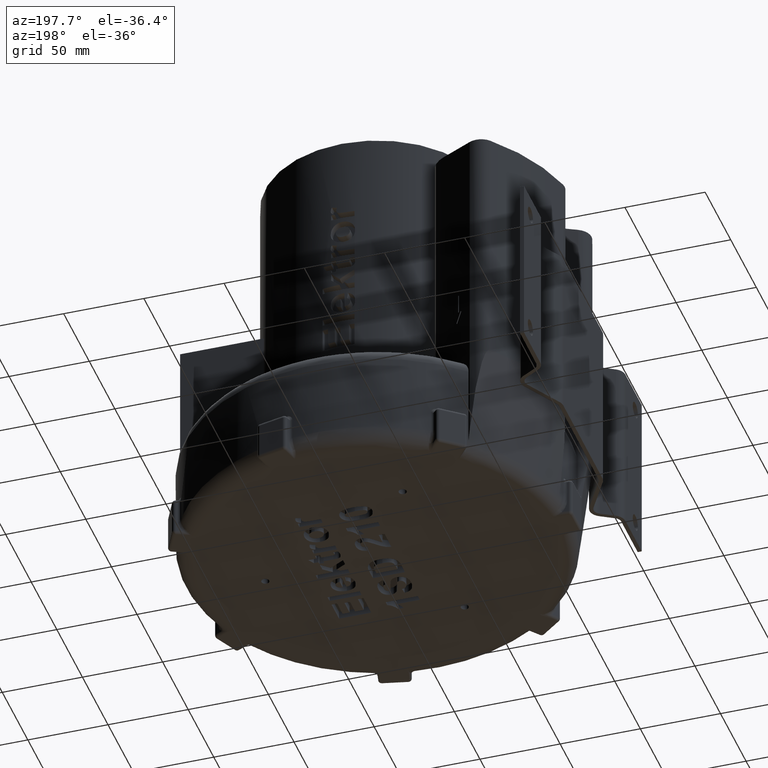
[diagram: clean part render]
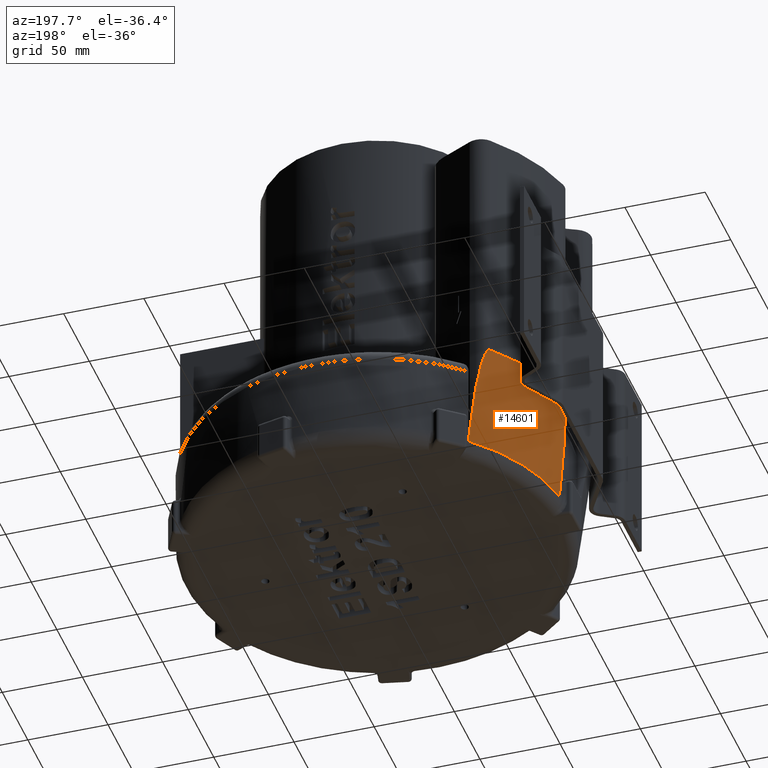
[diagram: same view with one face highlighted and labeled with its STEP entity id]
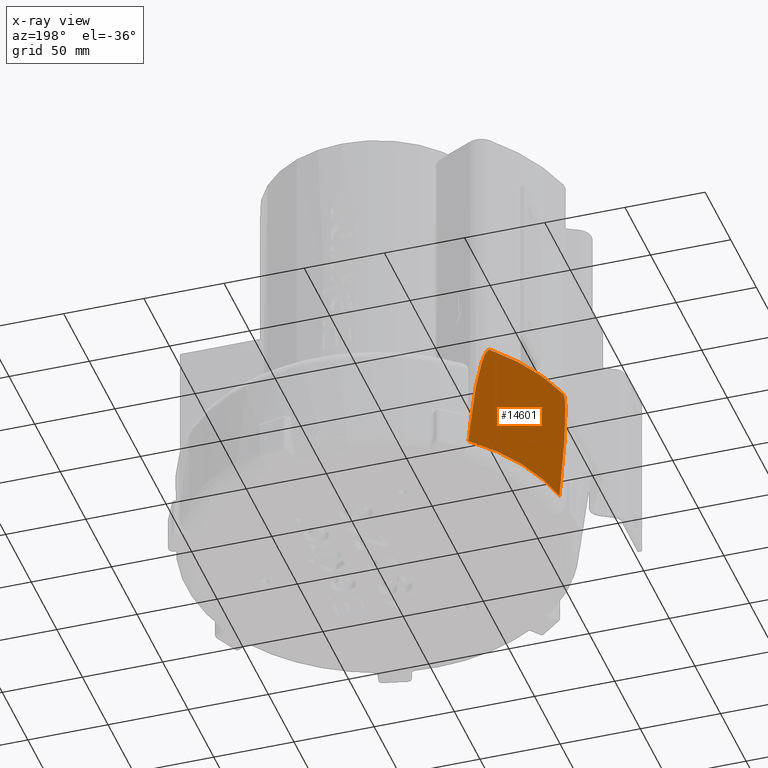
[diagram: x-ray of the same camera — body ghosted, the highlighted face saturated]
A machine part, auxiliary view. The second image highlights one B-rep face of the part: STEP entity #14601.
The next image is the same camera in x-ray: the body ghosted, the highlighted face saturated — about 0% of this face is hidden behind the body in this view.
In plain terms, the highlighted conical surface has half-angle 7 deg.
Its self-contained STEP definition (entity closure, byte-faithful):
#6118=CARTESIAN_POINT('',(-118.73004987260782,16.890576579050482,-63.218693434051481));
#6119=VERTEX_POINT('',#6118);
#6127=CARTESIAN_POINT('',(-83.986114261722307,85.606360342801821,-63.218693434051467));
#6128=VERTEX_POINT('',#6127);
#6129=CARTESIAN_POINT('',(0.0,0.0,-63.218693434051467));
#6130=DIRECTION('',(0.0,0.0,1.0));
#6131=DIRECTION('',(-1.0,0.0,0.0));
#6132=AXIS2_PLACEMENT_3D('',#6129,#6130,#6131);
#6133=CIRCLE('',#6132,119.92546151641321);
#6134=EDGE_CURVE('',#6128,#6119,#6133,.T.);
#14502=CARTESIAN_POINT('',(0.0,0.0,-17.60934671702573));
#14503=DIRECTION('',(0.0,0.0,1.0));
#14504=DIRECTION('',(-1.0,0.0,0.0));
#14505=AXIS2_PLACEMENT_3D('',#14502,#14503,#14504);
#14506=CONICAL_SURFACE('',#14505,125.52558512613152,6.999999999999961);
#14507=CARTESIAN_POINT('',(-84.815140395372865,86.025530859816186,-56.05030446855195));
#14508=VERTEX_POINT('',#14507);
#14509=CARTESIAN_POINT('',(-83.986114261722307,85.606360342801821,-63.218693434051467));
#14510=CARTESIAN_POINT('',(-84.399111774716019,85.815179310045863,-59.649097139021514));
#14511=CARTESIAN_POINT('',(-84.815140395372865,86.025530859816186,-56.05030446855195));
#14519=(BOUNDED_CURVE()B_SPLINE_CURVE(2,(#14509,#14510,#14511),.UNSPECIFIED.,.F.,.U.)B_SPLINE_CURVE_WITH_KNOTS((3,3),(0.0,0.756366785744703),.UNSPECIFIED.)CURVE()GEOMETRIC_REPRESENTATION_ITEM()RATIONAL_B_SPLINE_CURVE((1.0,1.000090507874745,1.000166129674321))REPRESENTATION_ITEM(''));
#14520=EDGE_CURVE('',#6128,#14508,#14519,.T.);
#14521=ORIENTED_EDGE('',*,*,#14520,.F.);
#14522=ORIENTED_EDGE('',*,*,#6134,.T.);
#14523=CARTESIAN_POINT('',(-119.55907600625841,17.309747096064783,-56.050304468551985));
#14524=VERTEX_POINT('',#14523);
#14525=CARTESIAN_POINT('',(-119.55907600625841,17.309747096064783,-56.050304468551985));
#14526=CARTESIAN_POINT('',(-119.14304738560224,17.099395546294812,-59.649097139015851));
#14527=CARTESIAN_POINT('',(-118.73004987260782,16.890576579050435,-63.218693434051474));
#14535=(BOUNDED_CURVE()B_SPLINE_CURVE(2,(#14525,#14526,#14527),.UNSPECIFIED.,.F.,.U.)B_SPLINE_CURVE_WITH_KNOTS((3,3),(8.441107971957056,9.197474757690657),.UNSPECIFIED.)CURVE()GEOMETRIC_REPRESENTATION_ITEM()RATIONAL_B_SPLINE_CURVE((1.000166129674588,1.00009050787489,1.0))REPRESENTATION_ITEM(''));
#14536=EDGE_CURVE('',#14524,#6119,#14535,.T.);
#14537=ORIENTED_EDGE('',*,*,#14536,.F.);
#14538=CARTESIAN_POINT('',(-124.7966118793473,28.457084591285124,2.543145222292537));
#14539=VERTEX_POINT('',#14538);
#14540=CARTESIAN_POINT('',(-119.55907600625838,17.309747096064811,-56.050304468551985));
#14541=CARTESIAN_POINT('',(-120.1990854506184,17.633347376921002,-50.513999553380238));
#14542=CARTESIAN_POINT('',(-120.83979870815517,18.042730849676104,-44.867965785846025));
#14543=CARTESIAN_POINT('',(-122.09996906575824,19.095941685147405,-33.426718574837878));
#14544=CARTESIAN_POINT('',(-122.71854673375245,19.742676774828805,-27.636371534827809));
#14545=CARTESIAN_POINT('',(-123.56520266605526,20.972141658370912,-19.187542020424004));
#14546=CARTESIAN_POINT('',(-123.83375473130747,21.425300636532832,-16.41136751016348));
#14547=CARTESIAN_POINT('',(-124.32765898756914,22.465757311998544,-10.974496663203352));
#14548=CARTESIAN_POINT('',(-124.55469137716523,23.04636280504856,-8.312674518570976));
#14549=CARTESIAN_POINT('',(-124.82392419566409,24.105784582665677,-4.543525852634918));
#14550=CARTESIAN_POINT('',(-124.90868158190543,24.507228030199535,-3.244904863123689));
#14551=CARTESIAN_POINT('',(-124.99946869014917,25.231296864046321,-1.363529257262358));
#14552=CARTESIAN_POINT('',(-125.02362709227359,25.492719176666171,-0.748220308548679));
#14553=CARTESIAN_POINT('',(-125.04985397730837,26.074768153716143,0.418352264161579));
#14554=CARTESIAN_POINT('',(-125.05297563249161,26.391826523330877,0.971368948522113));
#14555=CARTESIAN_POINT('',(-125.02088458911689,26.984408640594015,1.726381044097578));
#14556=CARTESIAN_POINT('',(-125.00053543231415,27.237496592706204,2.000040833250662));
#14557=CARTESIAN_POINT('',(-124.94498981944469,27.664958329814226,2.307056916901633));
#14558=CARTESIAN_POINT('',(-124.92228216880874,27.815557005180239,2.392225003697952));
#14559=CARTESIAN_POINT('',(-124.86699194473802,28.128750526770347,2.510284732694208));
#14560=CARTESIAN_POINT('',(-124.83440260712527,28.291355921082815,2.543145222292228));
#14561=CARTESIAN_POINT('',(-124.79661187934727,28.457084591285096,2.543145222292229));
#14562=B_SPLINE_CURVE_WITH_KNOTS('',3,(#14540,#14541,#14542,#14543,#14544,#14545,#14546,#14547,#14548,#14549,#14550,#14551,#14552,#14553,#14554,#14555,#14556,#14557,#14558,#14559,#14560,#14561),.UNSPECIFIED.,.F.,.U.,(4,2,2,2,2,2,2,2,2,2,4),(1.661256707423703,3.220479245854074,4.830718868781111,5.63583868024463,6.440958491708148,6.813175005660457,6.999283262636611,7.185391519612766,7.287381162439296,7.338375983852561,7.389370805265826),.UNSPECIFIED.);
#14563=EDGE_CURVE('',#14524,#14539,#14562,.T.);
#14564=ORIENTED_EDGE('',*,*,#14563,.T.);
#14565=CARTESIAN_POINT('',(-96.897453369879898,83.635420310009494,2.5431452222922));
#14566=VERTEX_POINT('',#14565);
#14567=CARTESIAN_POINT('',(0.0,0.0,2.543145222292307));
#14568=DIRECTION('',(0.0,0.0,1.0));
#14569=DIRECTION('',(-0.715369460263684,0.698746402725657,0.0));
#14570=AXIS2_PLACEMENT_3D('',#14567,#14568,#14569);
#14571=CIRCLE('',#14570,127.99999999999999);
#14572=EDGE_CURVE('',#14566,#14539,#14571,.T.);
#14573=ORIENTED_EDGE('',*,*,#14572,.F.);
#14574=CARTESIAN_POINT('',(-96.897453369879898,83.635420310009479,2.543145222292331));
#14575=CARTESIAN_POINT('',(-96.786386356272288,83.764099172769818,2.543145222292331));
#14576=CARTESIAN_POINT('',(-96.674751279469731,83.88673762030102,2.510284732694353));
#14577=CARTESIAN_POINT('',(-96.455297333479791,84.116927012830857,2.392225003698101));
#14578=CARTESIAN_POINT('',(-96.347473979213561,84.224489658271366,2.30705691690163));
#14579=CARTESIAN_POINT('',(-96.036145648150153,84.522623054719489,2.000040833250654));
#14580=CARTESIAN_POINT('',(-95.844384551436903,84.689042048450034,1.72638104409764));
#14581=CARTESIAN_POINT('',(-95.386172811286073,85.066169880826379,0.971368948522188));
#14582=CARTESIAN_POINT('',(-95.128979686454471,85.251608417849383,0.418352264161692));
#14583=CARTESIAN_POINT('',(-94.644679865387189,85.575525914285919,-0.748220308548559));
#14584=CARTESIAN_POINT('',(-94.419822569689345,85.711041413400139,-1.363529257262218));
#14585=CARTESIAN_POINT('',(-93.782875842430386,86.067154937161291,-3.244904863123522));
#14586=CARTESIAN_POINT('',(-93.409329535973058,86.236871798499124,-4.543525852634754));
#14587=CARTESIAN_POINT('',(-92.396523871727894,86.64807187135807,-8.312674518570805));
#14588=CARTESIAN_POINT('',(-91.794348829661828,86.809415179859769,-10.974496663203201));
#14589=CARTESIAN_POINT('',(-90.663631207964741,87.02843382714407,-16.411367510163345));
#14590=CARTESIAN_POINT('',(-90.139482163946596,87.080788873652466,-19.187542020423859));
#14591=CARTESIAN_POINT('',(-88.647435402029259,87.127763630903502,-27.636371534827681));
#14592=CARTESIAN_POINT('',(-87.759894481172466,87.01297808577263,-33.426718574837764));
#14593=CARTESIAN_POINT('',(-86.164661903196119,86.622445863928476,-44.867965785845946));
#14594=CARTESIAN_POINT('',(-85.455149839732897,86.349131140672341,-50.513999553380174));
#14595=CARTESIAN_POINT('',(-84.815140395372879,86.025530859816143,-56.05030446855195));
#14596=B_SPLINE_CURVE_WITH_KNOTS('',3,(#14574,#14575,#14576,#14577,#14578,#14579,#14580,#14581,#14582,#14583,#14584,#14585,#14586,#14587,#14588,#14589,#14590,#14591,#14592,#14593,#14594,#14595),.UNSPECIFIED.,.F.,.U.,(4,2,2,2,2,2,2,2,2,2,4),(7.38937080526582,7.440365626679084,7.491360448092348,7.593350090918874,7.779458347895027,7.965566604871178,8.337783118823483,9.142902930287004,9.948022741750524,11.558262364677564,13.117484903107943),.UNSPECIFIED.);
#14597=EDGE_CURVE('',#14566,#14508,#14596,.T.);
#14598=ORIENTED_EDGE('',*,*,#14597,.T.);
#14599=EDGE_LOOP('',(#14521,#14522,#14537,#14564,#14573,#14598));
#14600=FACE_OUTER_BOUND('',#14599,.T.);
#14601=ADVANCED_FACE('',(#14600),#14506,.T.);